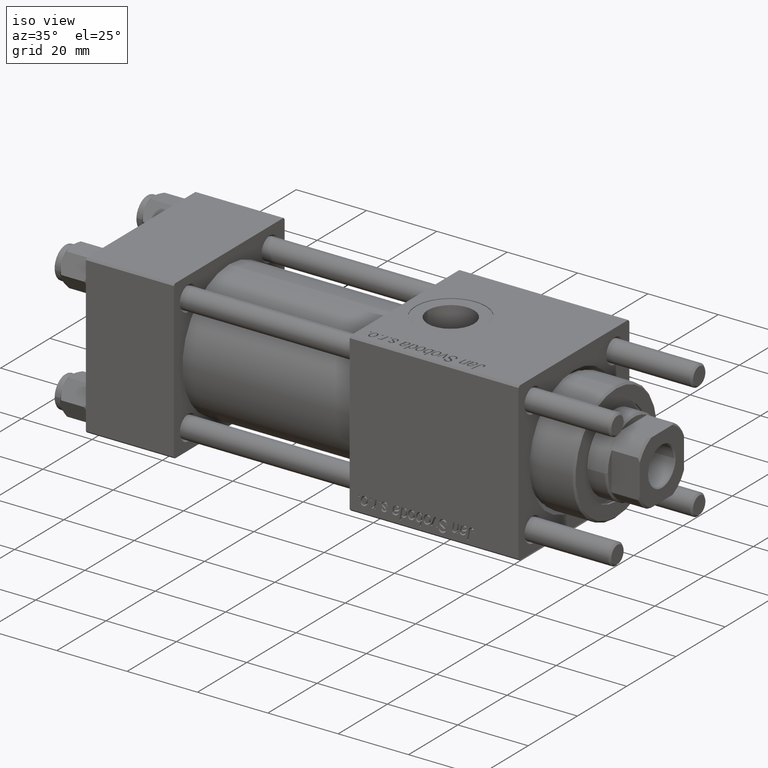
[diagram: clean part render]
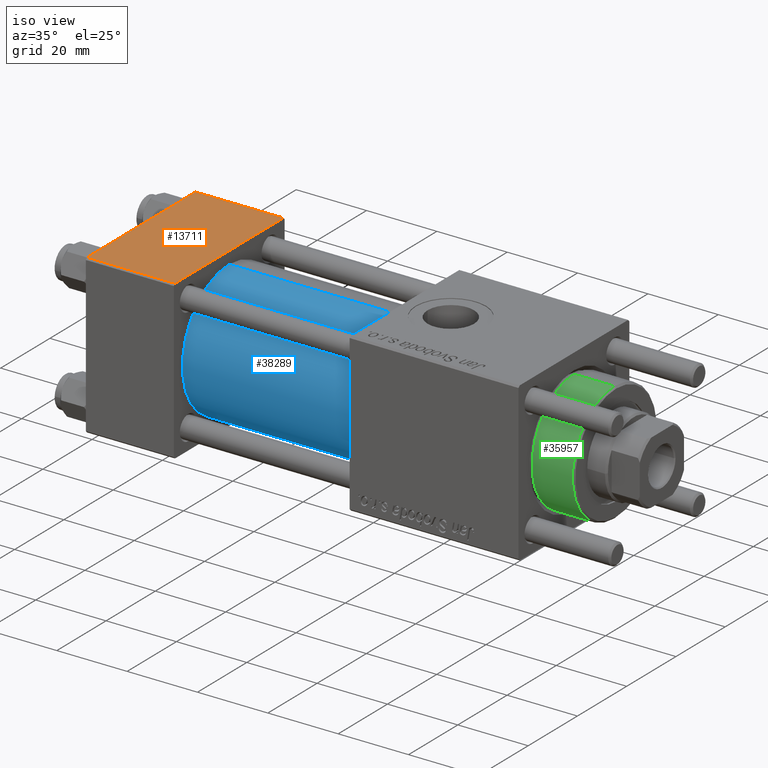
[diagram: same view with three faces highlighted in distinct colors, each labeled with its STEP entity id]
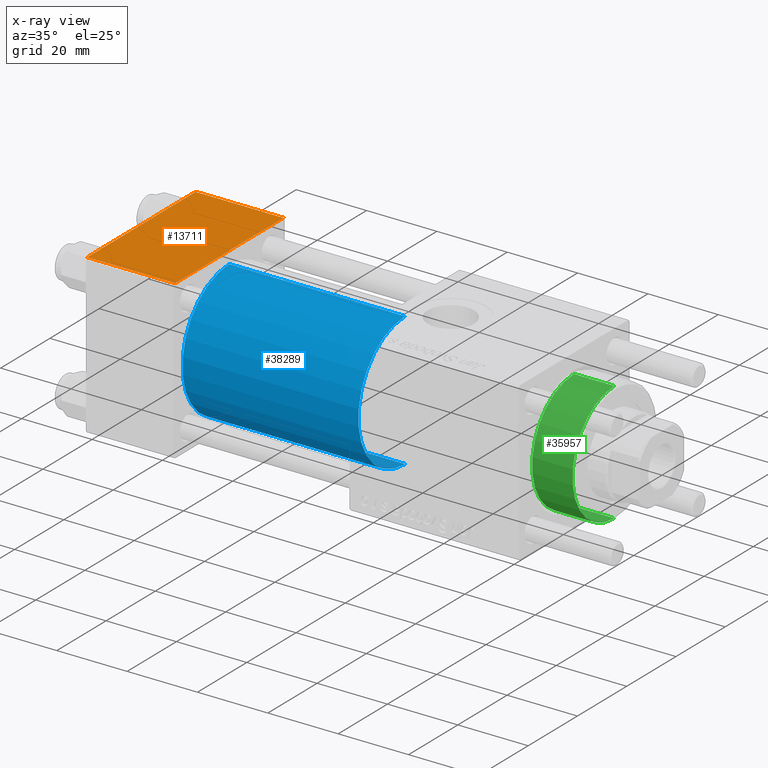
[diagram: x-ray of the same camera — body ghosted, the three highlighted faces saturated]
A machine part, iso view with three faces highlighted in distinct colors.
The next image is the same camera in x-ray (body ghosted, the three faces saturated) — at least one of them is partly hidden behind the body in this view.
Their STEP definitions:

[orange] entity #13711 — the highlighted planar face has unit normal (0, 0, -1).
#1455 = CARTESIAN_POINT ( 'NONE',  ( 25.00000000000000000, 21.99999999999999289, 22.50000000000000355 ) ) ;
#2863 = CARTESIAN_POINT ( 'NONE',  ( 25.00000000000000000, 22.50000000000000000, 22.50000000000000355 ) ) ;
#4130 = VERTEX_POINT ( 'NONE', #28271 ) ;
#4254 = CARTESIAN_POINT ( 'NONE',  ( 0.000000000000000000, 22.50000000000000000, 22.50000000000000355 ) ) ;
#4737 = LINE ( 'NONE', #12185, #30631 ) ;
#9201 = VERTEX_POINT ( 'NONE', #1455 ) ;
#12009 = EDGE_CURVE ( 'NONE', #9201, #33995, #15607, .T. ) ;
#12185 = CARTESIAN_POINT ( 'NONE',  ( 25.00000000000000000, 22.50000000000000000, 22.50000000000000355 ) ) ;
#13711 = ADVANCED_FACE ( 'NONE', ( #28706 ), #34148, .F. ) ;
#15607 = LINE ( 'NONE', #37197, #36551 ) ;
#15928 = ORIENTED_EDGE ( 'NONE', *, *, #37525, .T. ) ;
#16275 = DIRECTION ( 'NONE',  ( 0.000000000000000000, -1.000000000000000000, -7.709882115452476934E-17 ) ) ;
#17416 = LINE ( 'NONE', #52488, #32523 ) ;
#19644 = DIRECTION ( 'NONE',  ( -1.000000000000000000, 0.000000000000000000, 0.000000000000000000 ) ) ;
#20072 = DIRECTION ( 'NONE',  ( 0.000000000000000000, 7.709882115452476934E-17, -1.000000000000000000 ) ) ;
#20704 = CARTESIAN_POINT ( 'NONE',  ( 0.000000000000000000, 21.99999999999999289, 22.50000000000000355 ) ) ;
#24938 = DIRECTION ( 'NONE',  ( 0.000000000000000000, 1.000000000000000000, 7.709882115452476934E-17 ) ) ;
#26890 = VERTEX_POINT ( 'NONE', #32413 ) ;
#28271 = CARTESIAN_POINT ( 'NONE',  ( 0.000000000000000000, -21.99999999999997868, 22.50000000000000000 ) ) ;
#28706 = FACE_OUTER_BOUND ( 'NONE', #28718, .T. ) ;
#28718 = EDGE_LOOP ( 'NONE', ( #29997, #15928, #31718, #31920 ) ) ;
#29712 = DIRECTION ( 'NONE',  ( 0.000000000000000000, -1.000000000000000000, -7.709882115452476934E-17 ) ) ;
#29997 = ORIENTED_EDGE ( 'NONE', *, *, #31912, .T. ) ;
#30631 = VECTOR ( 'NONE', #29712, 1000.000000000000000 ) ;
#30948 = DIRECTION ( 'NONE',  ( 1.000000000000000000, 0.000000000000000000, 0.000000000000000000 ) ) ;
#31718 = ORIENTED_EDGE ( 'NONE', *, *, #54519, .F. ) ;
#31912 = EDGE_CURVE ( 'NONE', #33995, #4130, #43585, .T. ) ;
#31920 = ORIENTED_EDGE ( 'NONE', *, *, #12009, .T. ) ;
#32413 = CARTESIAN_POINT ( 'NONE',  ( 25.00000000000000000, -21.99999999999997868, 22.50000000000000000 ) ) ;
#32523 = VECTOR ( 'NONE', #30948, 1000.000000000000000 ) ;
#33995 = VERTEX_POINT ( 'NONE', #20704 ) ;
#34148 = PLANE ( 'NONE',  #44880 ) ;
#36551 = VECTOR ( 'NONE', #19644, 1000.000000000000000 ) ;
#36949 = VECTOR ( 'NONE', #16275, 1000.000000000000000 ) ;
#37197 = CARTESIAN_POINT ( 'NONE',  ( 0.000000000000000000, 21.99999999999999289, 22.50000000000000355 ) ) ;
#37525 = EDGE_CURVE ( 'NONE', #4130, #26890, #17416, .T. ) ;
#43585 = LINE ( 'NONE', #4254, #36949 ) ;
#44880 = AXIS2_PLACEMENT_3D ( 'NONE', #2863, #20072, #24938 ) ;
#52488 = CARTESIAN_POINT ( 'NONE',  ( 25.00000000000000000, -21.99999999999999289, 22.50000000000000000 ) ) ;
#54519 = EDGE_CURVE ( 'NONE', #9201, #26890, #4737, .T. ) ;

[blue] entity #38289 — the highlighted cylindrical surface (partial cylindrical patch) has radius 19 mm, axis along (-1, -0, -0).
#4956 = EDGE_LOOP ( 'NONE', ( #24844, #26343, #43284, #46523 ) ) ;
#7145 = FACE_OUTER_BOUND ( 'NONE', #4956, .T. ) ;
#10938 = EDGE_CURVE ( 'NONE', #12486, #53679, #53221, .T. ) ;
#12486 = VERTEX_POINT ( 'NONE', #47006 ) ;
#13190 = DIRECTION ( 'NONE',  ( -1.000000000000000000, -0.000000000000000000, -0.000000000000000000 ) ) ;
#14346 = CIRCLE ( 'NONE', #21686, 19.00000000000000000 ) ;
#14884 = DIRECTION ( 'NONE',  ( 0.000000000000000000, 0.000000000000000000, 1.000000000000000000 ) ) ;
#17485 = LINE ( 'NONE', #39069, #18705 ) ;
#18705 = VECTOR ( 'NONE', #13190, 1000.000000000000000 ) ;
#21686 = AXIS2_PLACEMENT_3D ( 'NONE', #25194, #50776, #33009 ) ;
#24166 = CIRCLE ( 'NONE', #43421, 19.00000000000000000 ) ;
#24632 = CYLINDRICAL_SURFACE ( 'NONE', #25221, 19.00000000000000000 ) ;
#24844 = ORIENTED_EDGE ( 'NONE', *, *, #10938, .F. ) ;
#25194 = CARTESIAN_POINT ( 'NONE',  ( 75.00000000000001421, -2.602085213965210642E-15, 0.000000000000000000 ) ) ;
#25221 = AXIS2_PLACEMENT_3D ( 'NONE', #54259, #54535, #14884 ) ;
#25480 = DIRECTION ( 'NONE',  ( 0.000000000000000000, 0.000000000000000000, 1.000000000000000000 ) ) ;
#26343 = ORIENTED_EDGE ( 'NONE', *, *, #46809, .F. ) ;
#27077 = CARTESIAN_POINT ( 'NONE',  ( 75.00000000000001421, -2.752562955852396712E-16, -19.00000000000000000 ) ) ;
#28225 = VERTEX_POINT ( 'NONE', #53610 ) ;
#30213 = CARTESIAN_POINT ( 'NONE',  ( 25.00000000000000000, -2.752562955852396712E-16, -19.00000000000000000 ) ) ;
#32868 = VECTOR ( 'NONE', #44608, 1000.000000000000000 ) ;
#33009 = DIRECTION ( 'NONE',  ( 0.000000000000000000, 0.000000000000000000, -1.000000000000000000 ) ) ;
#36545 = EDGE_CURVE ( 'NONE', #51928, #28225, #17485, .T. ) ;
#38289 = ADVANCED_FACE ( 'NONE', ( #7145 ), #24632, .T. ) ;
#39069 = CARTESIAN_POINT ( 'NONE',  ( 75.00000000000001421, -2.602085213965210642E-15, 19.00000000000000000 ) ) ;
#42437 = DIRECTION ( 'NONE',  ( 1.000000000000000000, -0.000000000000000000, 0.000000000000000000 ) ) ;
#43019 = CARTESIAN_POINT ( 'NONE',  ( 25.00000000000000000, -2.602085213965210642E-15, 0.000000000000000000 ) ) ;
#43284 = ORIENTED_EDGE ( 'NONE', *, *, #36545, .T. ) ;
#43421 = AXIS2_PLACEMENT_3D ( 'NONE', #43019, #42437, #25480 ) ;
#44608 = DIRECTION ( 'NONE',  ( -1.000000000000000000, -0.000000000000000000, -0.000000000000000000 ) ) ;
#44718 = CARTESIAN_POINT ( 'NONE',  ( 75.00000000000001421, -2.602085213965210642E-15, 19.00000000000000000 ) ) ;
#46523 = ORIENTED_EDGE ( 'NONE', *, *, #52713, .T. ) ;
#46809 = EDGE_CURVE ( 'NONE', #51928, #12486, #14346, .T. ) ;
#47006 = CARTESIAN_POINT ( 'NONE',  ( 75.00000000000001421, -2.752562955852396712E-16, -19.00000000000000000 ) ) ;
#50776 = DIRECTION ( 'NONE',  ( 1.000000000000000000, 0.000000000000000000, 0.000000000000000000 ) ) ;
#51928 = VERTEX_POINT ( 'NONE', #44718 ) ;
#52713 = EDGE_CURVE ( 'NONE', #28225, #53679, #24166, .T. ) ;
#53221 = LINE ( 'NONE', #27077, #32868 ) ;
#53610 = CARTESIAN_POINT ( 'NONE',  ( 25.00000000000000000, -2.602085213965210642E-15, 19.00000000000000000 ) ) ;
#53679 = VERTEX_POINT ( 'NONE', #30213 ) ;
#54259 = CARTESIAN_POINT ( 'NONE',  ( 75.00000000000001421, -2.602085213965210642E-15, 0.000000000000000000 ) ) ;
#54535 = DIRECTION ( 'NONE',  ( -1.000000000000000000, -0.000000000000000000, -0.000000000000000000 ) ) ;

[green] entity #35957 — the highlighted cylindrical surface (partial cylindrical patch) has radius 17 mm, axis along (-1, -0, 0).
#2915 = DIRECTION ( 'NONE',  ( -0.000000000000000000, -0.000000000000000000, -1.000000000000000000 ) ) ;
#4036 = VECTOR ( 'NONE', #2915, 1000.000000000000000 ) ;
#4556 = CARTESIAN_POINT ( 'NONE',  ( 17.00000000000000000, 2.081899558550500280E-15, 40.19999999999999574 ) ) ;
#9959 = ORIENTED_EDGE ( 'NONE', *, *, #24377, .F. ) ;
#10491 = CIRCLE ( 'NONE', #11373, 17.00000000000000000 ) ;
#11373 = AXIS2_PLACEMENT_3D ( 'NONE', #49295, #40681, #35328 ) ;
#11419 = FACE_OUTER_BOUND ( 'NONE', #50899, .T. ) ;
#15697 = CYLINDRICAL_SURFACE ( 'NONE', #47132, 17.00000000000000000 ) ;
#15911 = EDGE_CURVE ( 'NONE', #46927, #46902, #23028, .T. ) ;
#19050 = EDGE_CURVE ( 'NONE', #38160, #42097, #10491, .T. ) ;
#20689 = CARTESIAN_POINT ( 'NONE',  ( -17.00000000000000000, 0.000000000000000000, 40.70000000000000284 ) ) ;
#23028 = CIRCLE ( 'NONE', #54240, 17.00000000000000000 ) ;
#24377 = EDGE_CURVE ( 'NONE', #46927, #42097, #30923, .T. ) ;
#27558 = CARTESIAN_POINT ( 'NONE',  ( -17.00000000000000000, 0.000000000000000000, 28.69999999999999929 ) ) ;
#29896 = LINE ( 'NONE', #20689, #4036 ) ;
#30878 = CARTESIAN_POINT ( 'NONE',  ( 0.000000000000000000, 0.000000000000000000, 40.19999999999999574 ) ) ;
#30923 = LINE ( 'NONE', #43265, #40789 ) ;
#32363 = ORIENTED_EDGE ( 'NONE', *, *, #34679, .T. ) ;
#34609 = DIRECTION ( 'NONE',  ( -1.000000000000000000, 0.000000000000000000, 0.000000000000000000 ) ) ;
#34622 = DIRECTION ( 'NONE',  ( 1.000000000000000000, 0.000000000000000000, 0.000000000000000000 ) ) ;
#34679 = EDGE_CURVE ( 'NONE', #46902, #38160, #29896, .T. ) ;
#34902 = DIRECTION ( 'NONE',  ( 0.000000000000000000, 0.000000000000000000, -1.000000000000000000 ) ) ;
#35328 = DIRECTION ( 'NONE',  ( 1.000000000000000000, 0.000000000000000000, 0.000000000000000000 ) ) ;
#35957 = ADVANCED_FACE ( 'NONE', ( #11419 ), #15697, .T. ) ;
#38160 = VERTEX_POINT ( 'NONE', #27558 ) ;
#40681 = DIRECTION ( 'NONE',  ( 0.000000000000000000, 0.000000000000000000, 1.000000000000000000 ) ) ;
#40789 = VECTOR ( 'NONE', #56482, 1000.000000000000000 ) ;
#41257 = ORIENTED_EDGE ( 'NONE', *, *, #15911, .T. ) ;
#42097 = VERTEX_POINT ( 'NONE', #43572 ) ;
#42601 = ORIENTED_EDGE ( 'NONE', *, *, #19050, .T. ) ;
#43265 = CARTESIAN_POINT ( 'NONE',  ( 17.00000000000000000, 2.081899558550500280E-15, 40.70000000000000284 ) ) ;
#43572 = CARTESIAN_POINT ( 'NONE',  ( 17.00000000000000000, 2.081899558550500280E-15, 28.69999999999999929 ) ) ;
#46460 = CARTESIAN_POINT ( 'NONE',  ( 0.000000000000000000, 0.000000000000000000, 40.70000000000000284 ) ) ;
#46902 = VERTEX_POINT ( 'NONE', #56221 ) ;
#46927 = VERTEX_POINT ( 'NONE', #4556 ) ;
#47132 = AXIS2_PLACEMENT_3D ( 'NONE', #46460, #50755, #34609 ) ;
#49295 = CARTESIAN_POINT ( 'NONE',  ( 0.000000000000000000, 0.000000000000000000, 28.69999999999999929 ) ) ;
#50755 = DIRECTION ( 'NONE',  ( -0.000000000000000000, -0.000000000000000000, -1.000000000000000000 ) ) ;
#50899 = EDGE_LOOP ( 'NONE', ( #9959, #41257, #32363, #42601 ) ) ;
#54240 = AXIS2_PLACEMENT_3D ( 'NONE', #30878, #34902, #34622 ) ;
#56221 = CARTESIAN_POINT ( 'NONE',  ( -17.00000000000000000, 0.000000000000000000, 40.19999999999999574 ) ) ;
#56482 = DIRECTION ( 'NONE',  ( -0.000000000000000000, -0.000000000000000000, -1.000000000000000000 ) ) ;